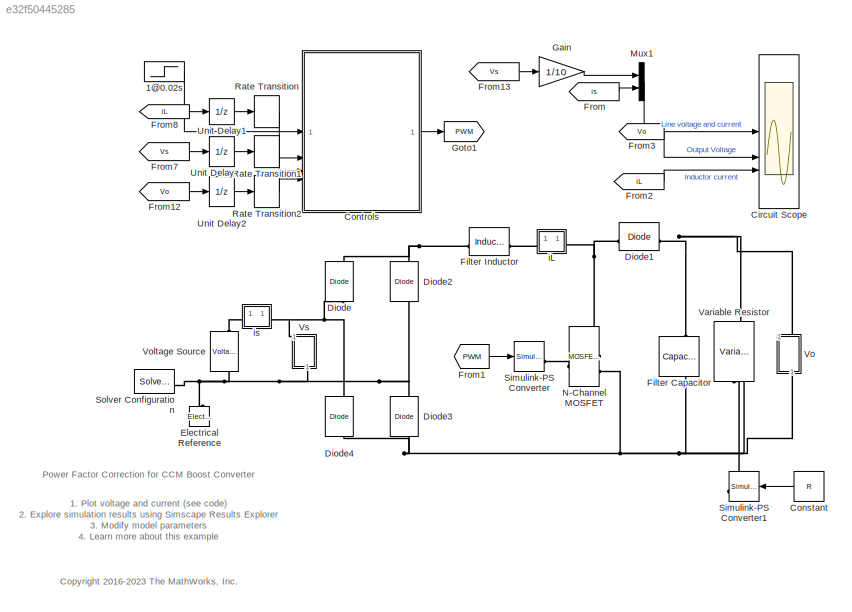
MODEL slx_e32f50445285
KIND model
CONFIG AbsTol = auto
CONFIG EnableMultiTasking = off
CONFIG FixedStep = Ts
CONFIG MaxStep = auto
CONFIG MinStep = auto
CONFIG PreLoadFcn = BoostPFCData
CONFIG RelTol = 1e-3
CONFIG SampleTimeConstraint = Unconstrained
CONFIG SolverName = FixedStepAuto
CONFIG StartTime = 0.0
CONFIG StopTime = 3
BLOCK [Step] 1@0.02s
  After = 40
  SampleTime = Tsc
  Time = 0.02
BLOCK [Scope] Circuit Scope
  Floating = off
  NumInputPorts = 3
  ScopeSpecificationString = Simulink.scopes.TimeScopeBlockCfg('CurrentConfiguration', extmgr.ConfigurationSet(extmgr.Configuration('Core','General UI',true),extmgr.Configuration('Core','Source UI',true),extmgr.Configuration('Sources','WiredSimulink',true),extmgr.Configuration('Visuals','Time Domain',true,'SerializedDisplays',{struct('MinYLimReal','-2.1372','MaxYLimReal','19.23483','YLabelReal','','MinYLimMag','0.00000','MaxY...<+3626ch>
BLOCK [Constant] Constant
  NameLocation = top
  SampleTime = Ts
  Value = R
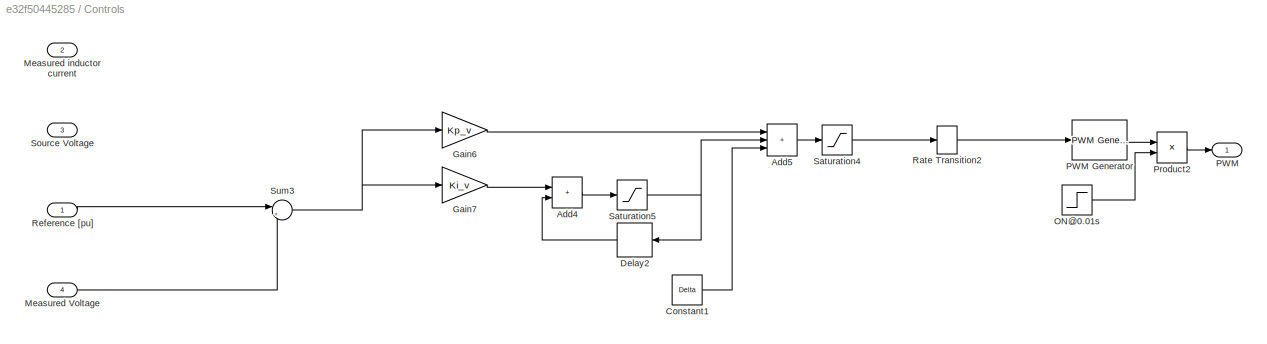
BLOCK [SubSystem] Controls
BLOCK [Sum] Controls/Add4
  IconShape = rectangular
BLOCK [Sum] Controls/Add5
  IconShape = rectangular
  Inputs = +++
BLOCK [Constant] Controls/Constant1
  Value = Delta
BLOCK [Delay] Controls/Delay2
  DelayLength = 1
  InputPortMap = u0
  NameLocation = top
  SampleTime = Tsc
BLOCK [Gain] Controls/Gain6
  Gain = Kp_v
BLOCK [Gain] Controls/Gain7
  Gain = Ki_v
BLOCK [Inport] Controls/Measured Voltage
  Port = 4
BLOCK [Inport] Controls/Measured inductor current
  Port = 2
BLOCK [Step] Controls/ON@0.01s
  SampleTime = Ts
  Time = 0.01
BLOCK [Outport] Controls/PWM
  VectorParamsAs1DForOutWhenUnconnected = off
BLOCK [Reference] Controls/PWM Generator  REF=eePwmGenerator/PWM Generator
  SourceBlock = eePwmGenerator/PWM Generator
  SourceType = PWM Generator
BLOCK [Product] Controls/Product2
BLOCK [RateTransition] Controls/Rate Transition2
  OutPortSampleTime = Ts
BLOCK [Inport] Controls/Reference [pu]
BLOCK [Saturate] Controls/Saturation4
  LowerLimit = 0.01
  UpperLimit = 0.99
BLOCK [Saturate] Controls/Saturation5
  LowerLimit = -100
  UpperLimit = 100
BLOCK [Inport] Controls/Source Voltage
  Port = 3
BLOCK [Sum] Controls/Sum3
  Inputs = |+-
BLOCK [Reference] Diode  REF=fl_lib/Electrical/Electrical Elements/Diode
  NameLocation = right
  SourceBlock = fl_lib/Electrical/Electrical Elements/Diode
  SourceType = Diode
BLOCK [Reference] Diode1  REF=fl_lib/Electrical/Electrical Elements/Diode
  SourceBlock = fl_lib/Electrical/Electrical Elements/Diode
  SourceType = Diode
BLOCK [Reference] Diode2  REF=fl_lib/Electrical/Electrical Elements/Diode
  NameLocation = right
  SourceBlock = fl_lib/Electrical/Electrical Elements/Diode
  SourceType = Diode
BLOCK [Reference] Diode3  REF=fl_lib/Electrical/Electrical Elements/Diode
  NameLocation = right
  SourceBlock = fl_lib/Electrical/Electrical Elements/Diode
  SourceType = Diode
BLOCK [Reference] Diode4  REF=fl_lib/Electrical/Electrical Elements/Diode
  NameLocation = right
  SourceBlock = fl_lib/Electrical/Electrical Elements/Diode
  SourceType = Diode
BLOCK [Reference] Electrical Reference  REF=fl_lib/Electrical/Electrical Elements/Electrical Reference
  NameLocation = right
  SourceBlock = fl_lib/Electrical/Electrical Elements/Electrical Reference
  SourceType = Electrical Reference
BLOCK [Reference] Filter Capacitor  REF=fl_lib/Electrical/Electrical Elements/Capacitor
  NameLocation = left
  SourceBlock = fl_lib/Electrical/Electrical Elements/Capacitor
  SourceType = Capacitor
BLOCK [Reference] Filter Inductor  REF=fl_lib/Electrical/Electrical Elements/Inductor
  SourceBlock = fl_lib/Electrical/Electrical Elements/Inductor
  SourceType = Inductor
BLOCK [From] From
  GotoTag = is
  TagVisibility = global
BLOCK [From] From1
  GotoTag = PWM
BLOCK [From] From12
  GotoTag = Vo
  TagVisibility = global
BLOCK [From] From13
  GotoTag = Vs
  TagVisibility = global
BLOCK [From] From2
  GotoTag = iL
  TagVisibility = global
BLOCK [From] From3
  GotoTag = Vo
  TagVisibility = global
BLOCK [From] From7
  GotoTag = Vs
  TagVisibility = global
BLOCK [From] From8
  GotoTag = iL
  TagVisibility = global
BLOCK [Gain] Gain
  Gain = 1/10
BLOCK [Goto] Goto1
  GotoTag = PWM
BLOCK [Mux] Mux1
  DisplayOption = bar
  Inputs = 2
BLOCK [Reference] N-Channel MOSFET  REF=ee_lib/Semiconductors &
Converters/MOSFET
(Ideal,
Switching)
  SourceBlock = ee_lib/Semiconductors &\nConverters/MOSFET\n(Ideal,\nSwitching)
  SourceType = MOSFET\n(Ideal,\nSwitching)
BLOCK [RateTransition] Rate Transition
  OutPortSampleTime = Tsc
BLOCK [RateTransition] Rate Transition1
  OutPortSampleTime = Tsc
BLOCK [RateTransition] Rate Transition2
  OutPortSampleTime = Tsc
BLOCK [Reference] Simulink-PS Converter  REF=nesl_utility/Simulink-PS
Converter
  SourceBlock = nesl_utility/Simulink-PS\nConverter
  SourceType = Simulink-PS\nConverter
BLOCK [Reference] Simulink-PS Converter1  REF=nesl_utility/Simulink-PS
Converter
  NameLocation = top
  SourceBlock = nesl_utility/Simulink-PS\nConverter
  SourceType = Simulink-PS\nConverter
BLOCK [Reference] Solver Configuration  REF=nesl_utility/Solver
Configuration
  SourceBlock = nesl_utility/Solver\nConfiguration
  SourceType = Solver\nConfiguration
BLOCK [UnitDelay] Unit Delay
  HasFrameUpgradeWarning = on
  SampleTime = -1
BLOCK [UnitDelay] Unit Delay1
  HasFrameUpgradeWarning = on
  SampleTime = -1
BLOCK [UnitDelay] Unit Delay2
  HasFrameUpgradeWarning = on
  SampleTime = -1
BLOCK [Reference] Variable Resistor  REF=fl_lib/Electrical/Electrical Elements/Variable Resistor
  NameLocation = right
  SourceBlock = fl_lib/Electrical/Electrical Elements/Variable Resistor
  SourceType = Variable Resistor
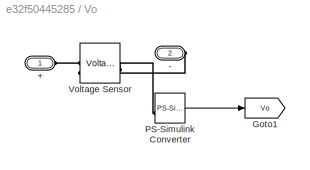
BLOCK [SubSystem] Vo
  NameLocation = right
BLOCK [PMIOPort] Vo/+
  Side = Left
BLOCK [PMIOPort] Vo/-
  Port = 2
  Side = Right
BLOCK [Goto] Vo/Goto1
  GotoTag = Vo
  TagVisibility = global
BLOCK [Reference] Vo/PS-Simulink Converter  REF=nesl_utility/PS-Simulink
Converter
  SourceBlock = nesl_utility/PS-Simulink\nConverter
  SourceType = PS-Simulink\nConverter
BLOCK [Reference] Vo/Voltage Sensor  REF=fl_lib/Electrical/Electrical Sensors/Voltage Sensor
  NameLocation = top
  SourceBlock = fl_lib/Electrical/Electrical Sensors/Voltage Sensor
  SourceType = Voltage Sensor
BLOCK [Reference] Voltage Source  REF=ee_lib/Sources/Voltage Source
  NameLocation = right
  SourceBlock = ee_lib/Sources/Voltage Source
  SourceType = Voltage Source
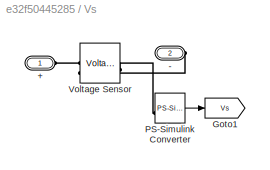
BLOCK [SubSystem] Vs
  NameLocation = right
BLOCK [PMIOPort] Vs/+
  Side = Left
BLOCK [PMIOPort] Vs/-
  Port = 2
  Side = Right
BLOCK [Goto] Vs/Goto1
  GotoTag = Vs
  TagVisibility = global
BLOCK [Reference] Vs/PS-Simulink Converter  REF=nesl_utility/PS-Simulink
Converter
  SourceBlock = nesl_utility/PS-Simulink\nConverter
  SourceType = PS-Simulink\nConverter
BLOCK [Reference] Vs/Voltage Sensor  REF=fl_lib/Electrical/Electrical Sensors/Voltage Sensor
  NameLocation = top
  SourceBlock = fl_lib/Electrical/Electrical Sensors/Voltage Sensor
  SourceType = Voltage Sensor
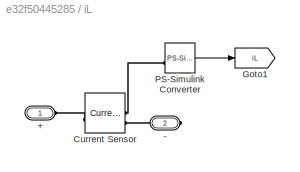
BLOCK [SubSystem] iL
BLOCK [PMIOPort] iL/+
  Side = Left
BLOCK [PMIOPort] iL/-
  Port = 2
  Side = Right
BLOCK [Reference] iL/Current Sensor  REF=fl_lib/Electrical/Electrical Sensors/Current Sensor
  SourceBlock = fl_lib/Electrical/Electrical Sensors/Current Sensor
  SourceType = Current Sensor
BLOCK [Goto] iL/Goto1
  GotoTag = iL
  TagVisibility = global
BLOCK [Reference] iL/PS-Simulink Converter  REF=nesl_utility/PS-Simulink
Converter
  SourceBlock = nesl_utility/PS-Simulink\nConverter
  SourceType = PS-Simulink\nConverter
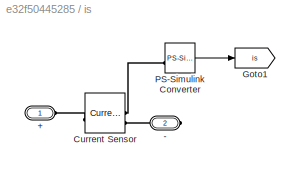
BLOCK [SubSystem] is
BLOCK [PMIOPort] is/+
  Side = Left
BLOCK [PMIOPort] is/-
  Port = 2
  Side = Right
BLOCK [Reference] is/Current Sensor  REF=fl_lib/Electrical/Electrical Sensors/Current Sensor
  SourceBlock = fl_lib/Electrical/Electrical Sensors/Current Sensor
  SourceType = Current Sensor
BLOCK [Goto] is/Goto1
  GotoTag = is
  TagVisibility = global
BLOCK [Reference] is/PS-Simulink Converter  REF=nesl_utility/PS-Simulink
Converter
  SourceBlock = nesl_utility/PS-Simulink\nConverter
  SourceType = PS-Simulink\nConverter
ANNOTATION (root): 1. Plot voltage and current ( see code ) 2. Explore simulation results using Simscape Results Explorer 3. Modify model parameters 4. Learn more about this example
ANNOTATION (root): <copyright redacted>
ANNOTATION (root): Power Factor Correction for CCM Boost Converter
LINE 1@0.02s:1 -> Controls:1
LINE Constant:1 -> Simulink-PS Converter1:1
LINE Controls/Add4:1 -> Controls/Saturation5:1
LINE Controls/Add5:1 -> Controls/Saturation4:1
LINE Controls/Constant1:1 -> Controls/Add5:3
LINE Controls/Delay2:1 -> Controls/Add4:2
LINE Controls/Gain6:1 -> Controls/Add5:1
LINE Controls/Gain7:1 -> Controls/Add4:1
LINE Controls/Measured Voltage:1 -> Controls/Sum3:2
LINE Controls/ON@0.01s:1 -> Controls/Product2:2
LINE Controls/PWM Generator:1 -> Controls/Product2:1
LINE Controls/Product2:1 -> Controls/PWM:1
LINE Controls/Rate Transition2:1 -> Controls/PWM Generator:1
LINE Controls/Reference [pu]:1 -> Controls/Sum3:1
LINE Controls/Saturation4:1 -> Controls/Rate Transition2:1
NET Controls/Saturation5:1 -> Controls/Add5:2, Controls/Delay2:1
NET Controls/Sum3:1 -> Controls/Gain6:1, Controls/Gain7:1
LINE Controls:1 -> Goto1:1
LINE From12:1 -> Unit Delay2:1
LINE From13:1 -> Gain:1
LINE From1:1 -> Simulink-PS Converter:1
LINE From2:1 -> Circuit Scope:3
LINE From3:1 -> Circuit Scope:2
LINE From7:1 -> Unit Delay:1
LINE From8:1 -> Unit Delay1:1
LINE From:1 -> Mux1:2
LINE Gain:1 -> Mux1:1
LINE Mux1:1 -> Circuit Scope:1
LINE Rate Transition1:1 -> Controls:3
LINE Rate Transition2:1 -> Controls:4
LINE Rate Transition:1 -> Controls:2
LINE Unit Delay1:1 -> Rate Transition:1
LINE Unit Delay2:1 -> Rate Transition2:1
LINE Unit Delay:1 -> Rate Transition1:1
LINE Vo/PS-Simulink Converter:1 -> Vo/Goto1:1
LINE Vs/PS-Simulink Converter:1 -> Vs/Goto1:1
LINE iL/PS-Simulink Converter:1 -> iL/Goto1:1
LINE is/PS-Simulink Converter:1 -> is/Goto1:1
PNET net1: Diode1:LConn1 -- N-Channel MOSFET:RConn1 -- iL:RConn1
PNET net2: Diode1:RConn1 -- Filter Capacitor:LConn1 -- Variable Resistor:RConn1 -- Vo:LConn1
PNET net3: Diode2:LConn1 -- Diode3:RConn1 -- Electrical Reference:LConn1 -- Solver Configuration:RConn1 -- Voltage Source:RConn1 -- Vs:RConn1
PNET net4: Diode2:RConn1 -- Diode:RConn1 -- Filter Inductor:LConn1
PNET net5: Diode3:LConn1 -- Diode4:LConn1 -- Filter Capacitor:RConn1 -- N-Channel MOSFET:RConn2 -- Variable Resistor:LConn2 -- Vo:RConn1
PNET net6: Diode4:RConn1 -- Diode:LConn1 -- Vs:LConn1 -- is:RConn1
PLINE Filter Inductor:RConn1 -- iL:LConn1
PLINE N-Channel MOSFET:LConn1 -- Simulink-PS Converter:RConn1
PLINE Simulink-PS Converter1:RConn1 -- Variable Resistor:LConn1
PLINE Vo/+:RConn1 -- Vo/Voltage Sensor:LConn1
PLINE Vo/-:RConn1 -- Vo/Voltage Sensor:RConn2
PLINE Vo/PS-Simulink Converter:LConn1 -- Vo/Voltage Sensor:RConn1
PLINE Voltage Source:LConn1 -- is:LConn1
PLINE Vs/+:RConn1 -- Vs/Voltage Sensor:LConn1
PLINE Vs/-:RConn1 -- Vs/Voltage Sensor:RConn2
PLINE Vs/PS-Simulink Converter:LConn1 -- Vs/Voltage Sensor:RConn1
PLINE iL/+:RConn1 -- iL/Current Sensor:LConn1
PLINE iL/-:RConn1 -- iL/Current Sensor:RConn2
PLINE iL/Current Sensor:RConn1 -- iL/PS-Simulink Converter:LConn1
PLINE is/+:RConn1 -- is/Current Sensor:LConn1
PLINE is/-:RConn1 -- is/Current Sensor:RConn2
PLINE is/Current Sensor:RConn1 -- is/PS-Simulink Converter:LConn1
note: NET lines group one-source signal fan-out (src -> all destinations, sorted); 1:1 wires keep LINE; PNET lines group multi-terminal physical nets as a canonical sorted terminal list (undirected conserving connections); 2-terminal nets keep the pairwise PLINE form
